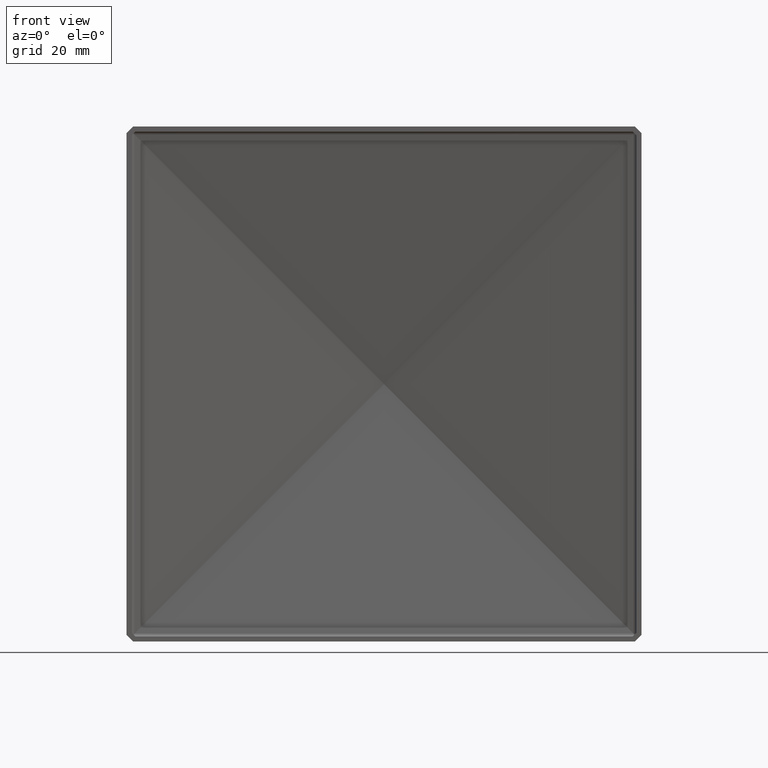
[diagram: clean part render]
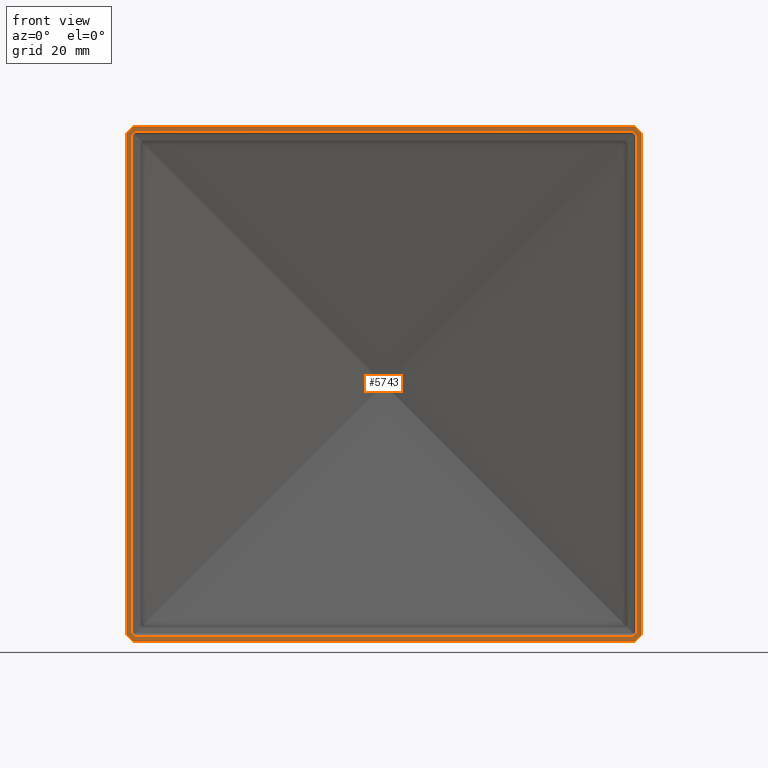
[diagram: same view with one face highlighted and labeled with its STEP entity id]
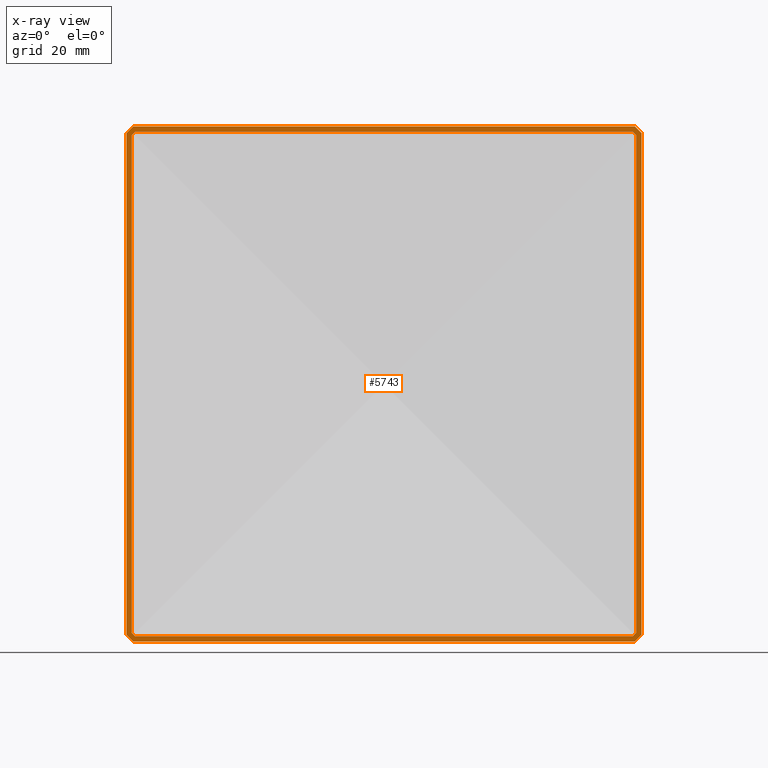
[diagram: x-ray of the same camera — body ghosted, the highlighted face saturated]
A machine part, front view. The second image highlights one B-rep face of the part: STEP entity #5743.
The next image is the same camera in x-ray: the body ghosted, the highlighted face saturated — about 0% of this face is hidden behind the body in this view.
In plain terms, the highlighted planar face has unit normal (0, 1, 0).
Its self-contained STEP definition (entity closure, byte-faithful):
#84 = ORIENTED_EDGE ( 'NONE', *, *, #12325, .T. ) ;
#226 = DIRECTION ( 'NONE',  ( 9.070449547591148029E-17, -0.000000000000000000, 1.000000000000000000 ) ) ;
#282 = CARTESIAN_POINT ( 'NONE',  ( -76.50000000000000000, 0.000000000000000000, 76.49999999999998579 ) ) ;
#289 = ORIENTED_EDGE ( 'NONE', *, *, #2933, .F. ) ;
#328 = ORIENTED_EDGE ( 'NONE', *, *, #2662, .T. ) ;
#505 = LINE ( 'NONE', #8172, #7185 ) ;
#776 = VERTEX_POINT ( 'NONE', #2787 ) ;
#793 = CARTESIAN_POINT ( 'NONE',  ( -76.50000000000000000, -0.000000000000000000, -74.49999999999998579 ) ) ;
#918 = LINE ( 'NONE', #2955, #3240 ) ;
#1060 = VECTOR ( 'NONE', #8102, 1000.000000000000000 ) ;
#1086 = CARTESIAN_POINT ( 'NONE',  ( 74.99999999999997158, 0.000000000000000000, -76.50000000000001421 ) ) ;
#1423 = EDGE_CURVE ( 'NONE', #8703, #1856, #9015, .T. ) ;
#1424 = EDGE_CURVE ( 'NONE', #1690, #3079, #505, .T. ) ;
#1484 = VERTEX_POINT ( 'NONE', #8611 ) ;
#1690 = VERTEX_POINT ( 'NONE', #8121 ) ;
#1856 = VERTEX_POINT ( 'NONE', #4847 ) ;
#1910 = CARTESIAN_POINT ( 'NONE',  ( -74.50000000000000000, -0.000000000000000000, -76.49999999999998579 ) ) ;
#2077 = DIRECTION ( 'NONE',  ( 1.000000000000000000, -0.000000000000000000, 0.000000000000000000 ) ) ;
#2182 = LINE ( 'NONE', #11485, #8528 ) ;
#2241 = EDGE_CURVE ( 'NONE', #9066, #1690, #2182, .T. ) ;
#2265 = DIRECTION ( 'NONE',  ( 0.7071067811865474617, -0.000000000000000000, 0.7071067811865474617 ) ) ;
#2338 = CARTESIAN_POINT ( 'NONE',  ( -76.50000000000001421, 0.000000000000000000, -76.50000000000001421 ) ) ;
#2431 = LINE ( 'NONE', #3861, #4940 ) ;
#2662 = EDGE_CURVE ( 'NONE', #4071, #776, #11137, .T. ) ;
#2787 = CARTESIAN_POINT ( 'NONE',  ( 73.87867965644042556, 0.000000000000000000, 74.99999999999998579 ) ) ;
#2802 = ORIENTED_EDGE ( 'NONE', *, *, #9375, .T. ) ;
#2933 = EDGE_CURVE ( 'NONE', #6382, #12628, #6684, .T. ) ;
#2955 = CARTESIAN_POINT ( 'NONE',  ( -76.50000000000001421, 0.000000000000000000, -76.50000000000001421 ) ) ;
#3070 = CARTESIAN_POINT ( 'NONE',  ( -74.49999999999997158, 0.000000000000000000, 76.50000000000001421 ) ) ;
#3079 = VERTEX_POINT ( 'NONE', #6970 ) ;
#3149 = ORIENTED_EDGE ( 'NONE', *, *, #4932, .F. ) ;
#3150 = DIRECTION ( 'NONE',  ( 9.070449547591148029E-17, 0.000000000000000000, 1.000000000000000000 ) ) ;
#3184 = DIRECTION ( 'NONE',  ( -1.000000000000000000, -0.000000000000000000, -0.000000000000000000 ) ) ;
#3197 = DIRECTION ( 'NONE',  ( -9.070449547591148029E-17, 0.000000000000000000, -1.000000000000000000 ) ) ;
#3239 = LINE ( 'NONE', #282, #10321 ) ;
#3240 = VECTOR ( 'NONE', #3184, 1000.000000000000000 ) ;
#3326 = VERTEX_POINT ( 'NONE', #5476 ) ;
#3358 = LINE ( 'NONE', #10748, #11843 ) ;
#3372 = LINE ( 'NONE', #7361, #9103 ) ;
#3450 = DIRECTION ( 'NONE',  ( -0.7071067811865474617, 0.000000000000000000, -0.7071067811865474617 ) ) ;
#3453 = CARTESIAN_POINT ( 'NONE',  ( 74.50000000000001421, 0.000000000000000000, -76.49999999999998579 ) ) ;
#3506 = EDGE_CURVE ( 'NONE', #12208, #5059, #4027, .T. ) ;
#3637 = DIRECTION ( 'NONE',  ( 0.000000000000000000, -0.000000000000000000, 1.000000000000000000 ) ) ;
#3785 = CARTESIAN_POINT ( 'NONE',  ( 74.99999999999998579, 0.000000000000000000, 73.87867965644042556 ) ) ;
#3861 = CARTESIAN_POINT ( 'NONE',  ( -76.49999999999997158, 0.000000000000000000, 74.50000000000001421 ) ) ;
#3871 = CARTESIAN_POINT ( 'NONE',  ( 74.50000000000002842, 0.000000000000000000, 76.50000000000001421 ) ) ;
#3981 = LINE ( 'NONE', #11044, #1060 ) ;
#4027 = LINE ( 'NONE', #5891, #6993 ) ;
#4071 = VERTEX_POINT ( 'NONE', #6282 ) ;
#4168 = CARTESIAN_POINT ( 'NONE',  ( -76.50000000000000000, 0.000000000000000000, 74.99999999999998579 ) ) ;
#4374 = DIRECTION ( 'NONE',  ( 0.7071067811865474617, 0.000000000000000000, -0.7071067811865474617 ) ) ;
#4516 = PLANE ( 'NONE',  #6702 ) ;
#4559 = DIRECTION ( 'NONE',  ( -0.7071067811865474617, 0.000000000000000000, 0.7071067811865474617 ) ) ;
#4796 = LINE ( 'NONE', #6621, #6507 ) ;
#4847 = CARTESIAN_POINT ( 'NONE',  ( -76.49999999999997158, 0.000000000000000000, 74.50000000000001421 ) ) ;
#4932 = EDGE_CURVE ( 'NONE', #5059, #6410, #918, .T. ) ;
#4940 = VECTOR ( 'NONE', #11788, 1000.000000000000114 ) ;
#5059 = VERTEX_POINT ( 'NONE', #3453 ) ;
#5084 = ORIENTED_EDGE ( 'NONE', *, *, #12333, .F. ) ;
#5337 = CARTESIAN_POINT ( 'NONE',  ( 73.43933982822021278, 0.000000000000000000, 75.43933982822019857 ) ) ;
#5476 = CARTESIAN_POINT ( 'NONE',  ( 74.99999999999997158, 0.000000000000000000, -73.87867965644039714 ) ) ;
#5602 = EDGE_LOOP ( 'NONE', ( #11875, #7779, #3149, #11060, #11731, #289, #5084, #6570 ) ) ;
#5628 = VECTOR ( 'NONE', #3150, 1000.000000000000000 ) ;
#5743 = ADVANCED_FACE ( 'NONE', ( #8134, #9797 ), #4516, .F. ) ;
#5891 = CARTESIAN_POINT ( 'NONE',  ( 76.50000000000001421, 0.000000000000000000, -74.49999999999998579 ) ) ;
#5915 = ORIENTED_EDGE ( 'NONE', *, *, #12551, .T. ) ;
#6209 = LINE ( 'NONE', #5337, #7875 ) ;
#6282 = CARTESIAN_POINT ( 'NONE',  ( -73.87867965644036872, 0.000000000000000000, 74.99999999999998579 ) ) ;
#6330 = DIRECTION ( 'NONE',  ( 0.000000000000000000, 1.000000000000000000, 0.000000000000000000 ) ) ;
#6382 = VERTEX_POINT ( 'NONE', #10729 ) ;
#6410 = VERTEX_POINT ( 'NONE', #1910 ) ;
#6507 = VECTOR ( 'NONE', #3450, 1000.000000000000114 ) ;
#6570 = ORIENTED_EDGE ( 'NONE', *, *, #7864, .F. ) ;
#6573 = EDGE_LOOP ( 'NONE', ( #11935, #10546, #2802, #328, #11733, #5915, #12525, #84 ) ) ;
#6621 = CARTESIAN_POINT ( 'NONE',  ( 75.43933982822019857, 0.000000000000000000, -73.43933982822017015 ) ) ;
#6684 = LINE ( 'NONE', #3871, #10070 ) ;
#6702 = AXIS2_PLACEMENT_3D ( 'NONE', #11397, #6330, #3637 ) ;
#6749 = EDGE_CURVE ( 'NONE', #3326, #1484, #4796, .T. ) ;
#6970 = CARTESIAN_POINT ( 'NONE',  ( -75.00000000000000000, 0.000000000000000000, 73.87867965644035451 ) ) ;
#6993 = VECTOR ( 'NONE', #12742, 1000.000000000000114 ) ;
#7185 = VECTOR ( 'NONE', #226, 1000.000000000000000 ) ;
#7361 = CARTESIAN_POINT ( 'NONE',  ( -75.43933982822015594, 0.000000000000000000, 73.43933982822019857 ) ) ;
#7422 = VECTOR ( 'NONE', #3197, 1000.000000000000000 ) ;
#7779 = ORIENTED_EDGE ( 'NONE', *, *, #8733, .F. ) ;
#7808 = CARTESIAN_POINT ( 'NONE',  ( 76.50000000000001421, 0.000000000000000000, -74.49999999999998579 ) ) ;
#7864 = EDGE_CURVE ( 'NONE', #1856, #10519, #2431, .T. ) ;
#7875 = VECTOR ( 'NONE', #4374, 1000.000000000000114 ) ;
#7882 = VECTOR ( 'NONE', #11134, 1000.000000000000000 ) ;
#7937 = DIRECTION ( 'NONE',  ( -0.7071067811865474617, 0.000000000000000000, 0.7071067811865474617 ) ) ;
#8102 = DIRECTION ( 'NONE',  ( -9.070449547591148029E-17, -0.000000000000000000, -1.000000000000000000 ) ) ;
#8121 = CARTESIAN_POINT ( 'NONE',  ( -75.00000000000001421, -0.000000000000000000, -73.87867965644034030 ) ) ;
#8134 = FACE_BOUND ( 'NONE', #6573, .T. ) ;
#8172 = CARTESIAN_POINT ( 'NONE',  ( -75.00000000000001421, 0.000000000000000000, -76.50000000000001421 ) ) ;
#8528 = VECTOR ( 'NONE', #4559, 1000.000000000000114 ) ;
#8611 = CARTESIAN_POINT ( 'NONE',  ( 73.87867965644035451, 0.000000000000000000, -75.00000000000001421 ) ) ;
#8613 = EDGE_CURVE ( 'NONE', #12628, #12208, #3981, .T. ) ;
#8638 = EDGE_CURVE ( 'NONE', #776, #11016, #6209, .T. ) ;
#8654 = LINE ( 'NONE', #1086, #7422 ) ;
#8703 = VERTEX_POINT ( 'NONE', #793 ) ;
#8733 = EDGE_CURVE ( 'NONE', #6410, #8703, #3358, .T. ) ;
#8808 = LINE ( 'NONE', #12076, #7882 ) ;
#9015 = LINE ( 'NONE', #2338, #5628 ) ;
#9066 = VERTEX_POINT ( 'NONE', #9631 ) ;
#9103 = VECTOR ( 'NONE', #2265, 1000.000000000000114 ) ;
#9375 = EDGE_CURVE ( 'NONE', #3079, #4071, #3372, .T. ) ;
#9596 = VECTOR ( 'NONE', #2077, 1000.000000000000000 ) ;
#9631 = CARTESIAN_POINT ( 'NONE',  ( -73.87867965644034030, 0.000000000000000000, -75.00000000000001421 ) ) ;
#9797 = FACE_OUTER_BOUND ( 'NONE', #5602, .T. ) ;
#10070 = VECTOR ( 'NONE', #10815, 1000.000000000000114 ) ;
#10321 = VECTOR ( 'NONE', #11173, 1000.000000000000000 ) ;
#10519 = VERTEX_POINT ( 'NONE', #3070 ) ;
#10546 = ORIENTED_EDGE ( 'NONE', *, *, #1424, .T. ) ;
#10729 = CARTESIAN_POINT ( 'NONE',  ( 74.50000000000002842, 0.000000000000000000, 76.50000000000001421 ) ) ;
#10748 = CARTESIAN_POINT ( 'NONE',  ( -74.50000000000000000, -0.000000000000000000, -76.49999999999998579 ) ) ;
#10815 = DIRECTION ( 'NONE',  ( 0.7071067811865474617, 0.000000000000000000, -0.7071067811865474617 ) ) ;
#11016 = VERTEX_POINT ( 'NONE', #3785 ) ;
#11044 = CARTESIAN_POINT ( 'NONE',  ( 76.49999999999997158, 0.000000000000000000, -76.50000000000001421 ) ) ;
#11060 = ORIENTED_EDGE ( 'NONE', *, *, #3506, .F. ) ;
#11134 = DIRECTION ( 'NONE',  ( -1.000000000000000000, 0.000000000000000000, 0.000000000000000000 ) ) ;
#11137 = LINE ( 'NONE', #4168, #9596 ) ;
#11173 = DIRECTION ( 'NONE',  ( 1.000000000000000000, 0.000000000000000000, 0.000000000000000000 ) ) ;
#11397 = CARTESIAN_POINT ( 'NONE',  ( 0.000000000000000000, 0.000000000000000000, 0.000000000000000000 ) ) ;
#11485 = CARTESIAN_POINT ( 'NONE',  ( -73.43933982822018436, 0.000000000000000000, -75.43933982822017015 ) ) ;
#11731 = ORIENTED_EDGE ( 'NONE', *, *, #8613, .F. ) ;
#11733 = ORIENTED_EDGE ( 'NONE', *, *, #8638, .T. ) ;
#11788 = DIRECTION ( 'NONE',  ( 0.7071067811865474617, 0.000000000000000000, 0.7071067811865474617 ) ) ;
#11843 = VECTOR ( 'NONE', #7937, 1000.000000000000114 ) ;
#11875 = ORIENTED_EDGE ( 'NONE', *, *, #1423, .F. ) ;
#11935 = ORIENTED_EDGE ( 'NONE', *, *, #2241, .T. ) ;
#12016 = CARTESIAN_POINT ( 'NONE',  ( 76.50000000000002842, 0.000000000000000000, 74.50000000000001421 ) ) ;
#12076 = CARTESIAN_POINT ( 'NONE',  ( -76.50000000000001421, 0.000000000000000000, -75.00000000000001421 ) ) ;
#12208 = VERTEX_POINT ( 'NONE', #7808 ) ;
#12325 = EDGE_CURVE ( 'NONE', #1484, #9066, #8808, .T. ) ;
#12333 = EDGE_CURVE ( 'NONE', #10519, #6382, #3239, .T. ) ;
#12525 = ORIENTED_EDGE ( 'NONE', *, *, #6749, .T. ) ;
#12551 = EDGE_CURVE ( 'NONE', #11016, #3326, #8654, .T. ) ;
#12628 = VERTEX_POINT ( 'NONE', #12016 ) ;
#12742 = DIRECTION ( 'NONE',  ( -0.7071067811865474617, 0.000000000000000000, -0.7071067811865474617 ) ) ;